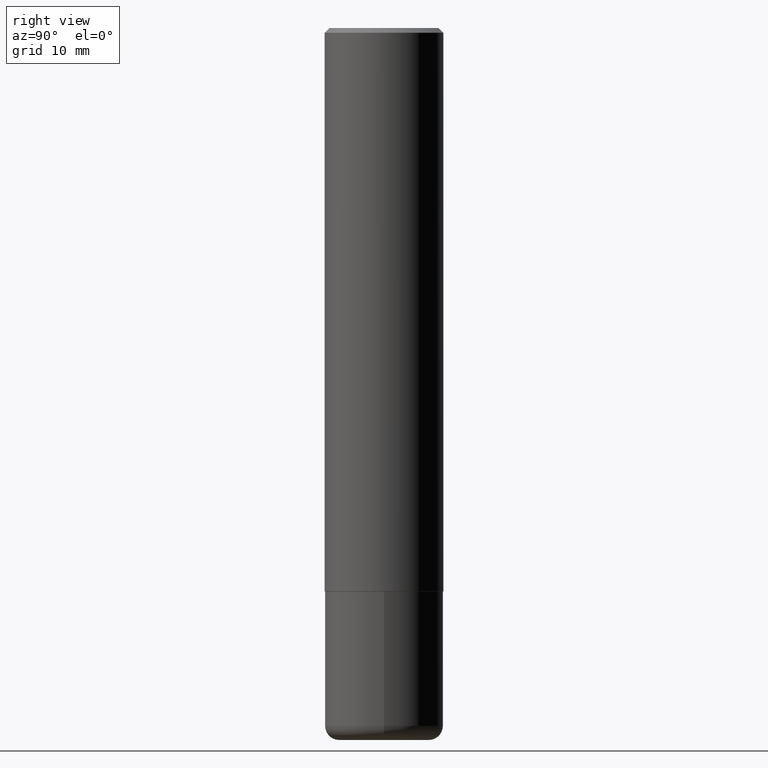
[diagram: clean part render]
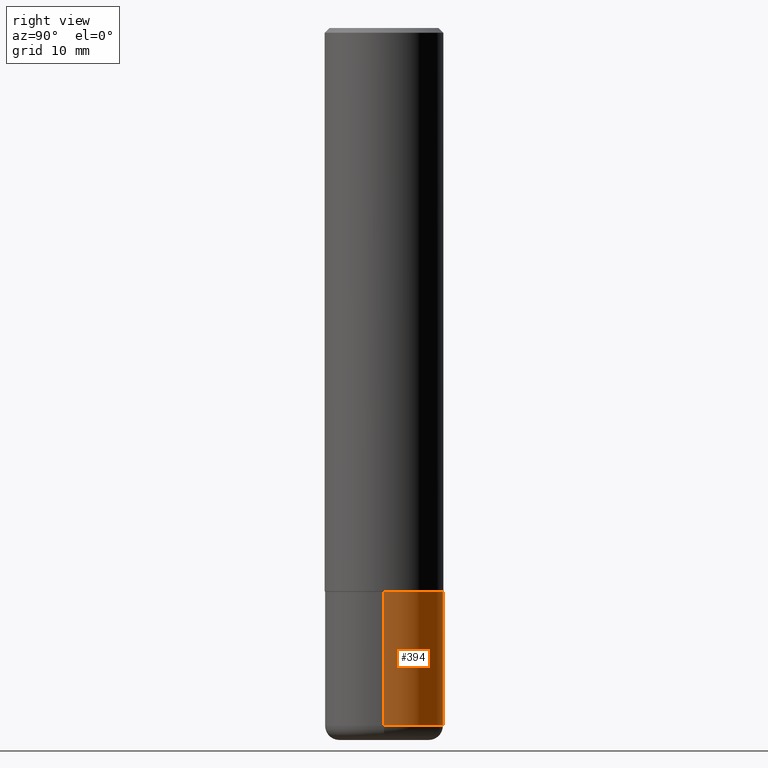
[diagram: same view with one face highlighted and labeled with its STEP entity id]
A machine part, right view. The second image highlights one B-rep face of the part: STEP entity #394.
In plain terms, the highlighted cylindrical surface (partial cylindrical patch) has radius 6.35 mm, axis along (-0, 0, 1).
Its self-contained STEP definition (entity closure, byte-faithful):
#3 = ORIENTED_EDGE ( 'NONE', *, *, #314, .T. ) ;
#18 = ORIENTED_EDGE ( 'NONE', *, *, #351, .F. ) ;
#24 = EDGE_CURVE ( 'NONE', #74, #125, #77, .T. ) ;
#28 = FACE_OUTER_BOUND ( 'NONE', #35, .T. ) ;
#29 = AXIS2_PLACEMENT_3D ( 'NONE', #249, #281, #352 ) ;
#35 = EDGE_LOOP ( 'NONE', ( #3, #40, #397, #18 ) ) ;
#40 = ORIENTED_EDGE ( 'NONE', *, *, #132, .T. ) ;
#62 = VECTOR ( 'NONE', #131, 39.37007874015748143 ) ;
#74 = VERTEX_POINT ( 'NONE', #82 ) ;
#77 = CIRCLE ( 'NONE', #257, 0.2500000000000000000 ) ;
#82 = CARTESIAN_POINT ( 'NONE',  ( 0.2500000000000000000, -1.003800884917403837E-14, -2.375000000000000000 ) ) ;
#88 = CARTESIAN_POINT ( 'NONE',  ( 0.000000000000000000, 0.000000000000000000, 0.000000000000000000 ) ) ;
#94 = VERTEX_POINT ( 'NONE', #391 ) ;
#108 = CARTESIAN_POINT ( 'NONE',  ( 0.2499999999999999722, -1.201069580562041471E-14, -2.940000000000000391 ) ) ;
#124 = DIRECTION ( 'NONE',  ( 1.000000000000000000, -6.982962677686266711E-15, 4.876176775795935793E-29 ) ) ;
#125 = VERTEX_POINT ( 'NONE', #366 ) ;
#131 = DIRECTION ( 'NONE',  ( -2.445468806185136877E-29, 3.491481338843145188E-15, 1.000000000000000000 ) ) ;
#132 = EDGE_CURVE ( 'NONE', #94, #125, #312, .T. ) ;
#141 = CARTESIAN_POINT ( 'NONE',  ( -0.2500000000000000000, 1.776356839400250465E-15, -1.229733772563726445E-29 ) ) ;
#204 = VERTEX_POINT ( 'NONE', #108 ) ;
#219 = DIRECTION ( 'NONE',  ( -2.445468806185136877E-29, 3.491481338843145188E-15, 1.000000000000000000 ) ) ;
#249 = CARTESIAN_POINT ( 'NONE',  ( 7.189678290184301639E-29, -1.026495513619884961E-14, -2.940000000000000391 ) ) ;
#255 = CARTESIAN_POINT ( 'NONE',  ( 5.807988414689700538E-29, -8.292268179752471696E-15, -2.375000000000000000 ) ) ;
#257 = AXIS2_PLACEMENT_3D ( 'NONE', #255, #263, #382 ) ;
#263 = DIRECTION ( 'NONE',  ( -2.445468806185136597E-29, 3.491481338843145583E-15, 1.000000000000000000 ) ) ;
#264 = VECTOR ( 'NONE', #219, 39.37007874015748143 ) ;
#281 = DIRECTION ( 'NONE',  ( -2.445468806185136597E-29, 3.491481338843145583E-15, 1.000000000000000000 ) ) ;
#289 = CYLINDRICAL_SURFACE ( 'NONE', #401, 0.2500000000000000000 ) ;
#290 = CIRCLE ( 'NONE', #29, 0.2500000000000000000 ) ;
#312 = LINE ( 'NONE', #141, #62 ) ;
#314 = EDGE_CURVE ( 'NONE', #204, #94, #290, .T. ) ;
#348 = CARTESIAN_POINT ( 'NONE',  ( 0.2500000000000000000, -1.745740669421566678E-15, 1.219044193948983948E-29 ) ) ;
#351 = EDGE_CURVE ( 'NONE', #204, #74, #377, .T. ) ;
#352 = DIRECTION ( 'NONE',  ( 1.000000000000000000, -6.982962677686262766E-15, 0.000000000000000000 ) ) ;
#366 = CARTESIAN_POINT ( 'NONE',  ( -0.2500000000000000000, -7.502254818575409401E-15, -2.375000000000000000 ) ) ;
#377 = LINE ( 'NONE', #348, #264 ) ;
#382 = DIRECTION ( 'NONE',  ( 1.000000000000000000, -6.982962677686266711E-15, 0.000000000000000000 ) ) ;
#391 = CARTESIAN_POINT ( 'NONE',  ( -0.2499999999999999722, -8.488598296798599150E-15, -2.940000000000000391 ) ) ;
#394 = ADVANCED_FACE ( 'NONE', ( #28 ), #289, .T. ) ;
#397 = ORIENTED_EDGE ( 'NONE', *, *, #24, .F. ) ;
#401 = AXIS2_PLACEMENT_3D ( 'NONE', #88, #418, #124 ) ;
#418 = DIRECTION ( 'NONE',  ( -2.445468806185136597E-29, 3.491481338843145583E-15, 1.000000000000000000 ) ) ;